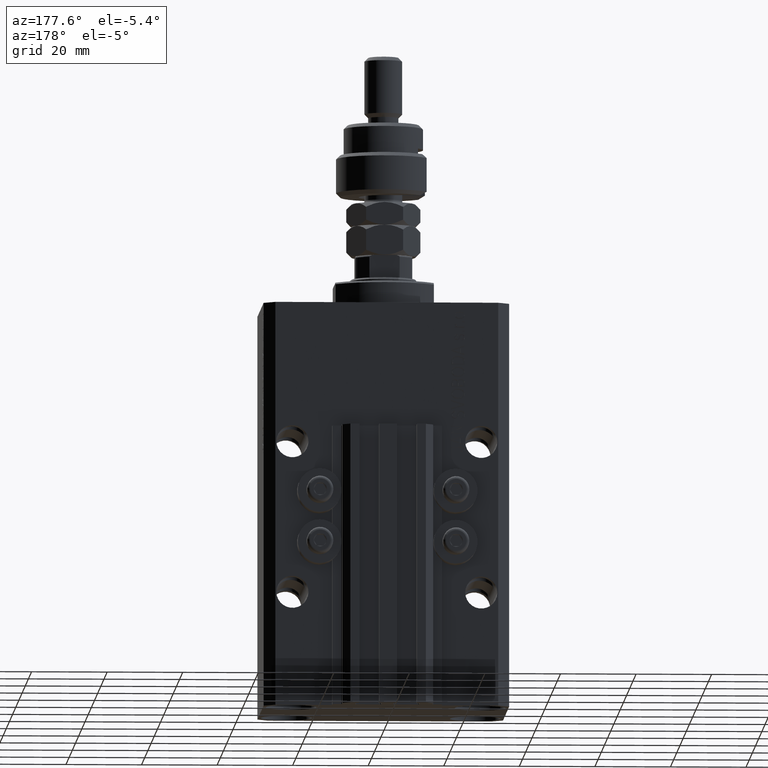
[diagram: clean part render]
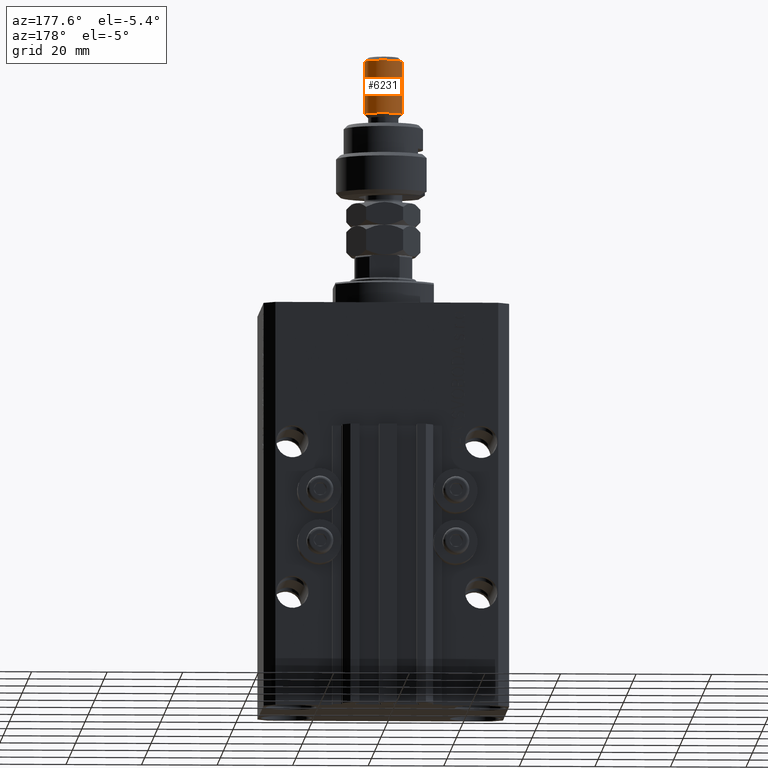
[diagram: same view with one face highlighted and labeled with its STEP entity id]
A machine part, auxiliary view. The second image highlights one B-rep face of the part: STEP entity #6231.
In plain terms, the highlighted cylindrical surface (edge-blend (fillet) strip) has radius 5 mm, axis along (-0, -0, -1).
Its self-contained STEP definition (entity closure, byte-faithful):
#245 = CARTESIAN_POINT ( 'NONE',  ( 0.000000000000000000, 0.000000000000000000, 21.99999999999999289 ) ) ;
#891 = VECTOR ( 'NONE', #42038, 1000.000000000000000 ) ;
#1868 = DIRECTION ( 'NONE',  ( 1.000000000000000000, 0.000000000000000000, 0.000000000000000000 ) ) ;
#1896 = CARTESIAN_POINT ( 'NONE',  ( 5.000000000000000888, 6.123233995736767268E-16, 21.99999999999999289 ) ) ;
#3259 = VERTEX_POINT ( 'NONE', #6665 ) ;
#4417 = ORIENTED_EDGE ( 'NONE', *, *, #12487, .T. ) ;
#4594 = ORIENTED_EDGE ( 'NONE', *, *, #25047, .T. ) ;
#6090 = CYLINDRICAL_SURFACE ( 'NONE', #14934, 5.000000000000000888 ) ;
#6231 = ADVANCED_FACE ( 'NONE', ( #41327 ), #6090, .T. ) ;
#6448 = DIRECTION ( 'NONE',  ( 0.000000000000000000, 0.000000000000000000, -1.000000000000000000 ) ) ;
#6665 = CARTESIAN_POINT ( 'NONE',  ( 5.000000000000000888, 6.123233995736767268E-16, 36.00000000000000711 ) ) ;
#10428 = CARTESIAN_POINT ( 'NONE',  ( 0.000000000000000000, 0.000000000000000000, 37.00000000000000000 ) ) ;
#11007 = ORIENTED_EDGE ( 'NONE', *, *, #49209, .F. ) ;
#11874 = VECTOR ( 'NONE', #42073, 1000.000000000000000 ) ;
#12487 = EDGE_CURVE ( 'NONE', #50378, #37702, #24013, .T. ) ;
#14248 = VERTEX_POINT ( 'NONE', #16731 ) ;
#14934 = AXIS2_PLACEMENT_3D ( 'NONE', #10428, #48988, #41571 ) ;
#15260 = CARTESIAN_POINT ( 'NONE',  ( 5.000000000000000888, 6.123233995736767268E-16, 37.00000000000000000 ) ) ;
#16731 = CARTESIAN_POINT ( 'NONE',  ( -5.000000000000000888, 0.000000000000000000, 36.00000000000000711 ) ) ;
#19285 = EDGE_LOOP ( 'NONE', ( #38088, #4594, #4417, #11007 ) ) ;
#20756 = AXIS2_PLACEMENT_3D ( 'NONE', #245, #23247, #32166 ) ;
#23247 = DIRECTION ( 'NONE',  ( -0.000000000000000000, -0.000000000000000000, 1.000000000000000000 ) ) ;
#24013 = CIRCLE ( 'NONE', #20756, 5.000000000000000888 ) ;
#25047 = EDGE_CURVE ( 'NONE', #3259, #50378, #30585, .T. ) ;
#25707 = EDGE_CURVE ( 'NONE', #14248, #3259, #43697, .T. ) ;
#26471 = CARTESIAN_POINT ( 'NONE',  ( -5.000000000000000888, 0.000000000000000000, 37.00000000000000000 ) ) ;
#30585 = LINE ( 'NONE', #15260, #11874 ) ;
#32166 = DIRECTION ( 'NONE',  ( 1.000000000000000000, 0.000000000000000000, 0.000000000000000000 ) ) ;
#33027 = CARTESIAN_POINT ( 'NONE',  ( 0.000000000000000000, 0.000000000000000000, 36.00000000000000711 ) ) ;
#33084 = AXIS2_PLACEMENT_3D ( 'NONE', #33027, #6448, #1868 ) ;
#37702 = VERTEX_POINT ( 'NONE', #40597 ) ;
#38088 = ORIENTED_EDGE ( 'NONE', *, *, #25707, .T. ) ;
#40597 = CARTESIAN_POINT ( 'NONE',  ( -5.000000000000000888, 0.000000000000000000, 21.99999999999999289 ) ) ;
#41327 = FACE_OUTER_BOUND ( 'NONE', #19285, .T. ) ;
#41571 = DIRECTION ( 'NONE',  ( -1.000000000000000000, 0.000000000000000000, 0.000000000000000000 ) ) ;
#42038 = DIRECTION ( 'NONE',  ( -0.000000000000000000, -0.000000000000000000, -1.000000000000000000 ) ) ;
#42073 = DIRECTION ( 'NONE',  ( -0.000000000000000000, -0.000000000000000000, -1.000000000000000000 ) ) ;
#43697 = CIRCLE ( 'NONE', #33084, 5.000000000000000888 ) ;
#45877 = LINE ( 'NONE', #26471, #891 ) ;
#48988 = DIRECTION ( 'NONE',  ( -0.000000000000000000, -0.000000000000000000, -1.000000000000000000 ) ) ;
#49209 = EDGE_CURVE ( 'NONE', #14248, #37702, #45877, .T. ) ;
#50378 = VERTEX_POINT ( 'NONE', #1896 ) ;